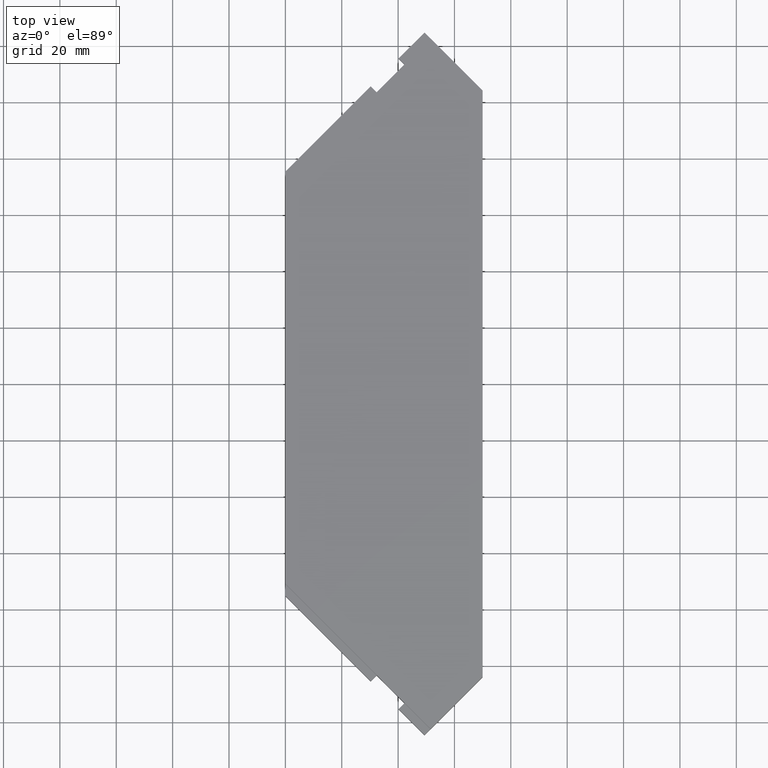
[diagram: clean part render]
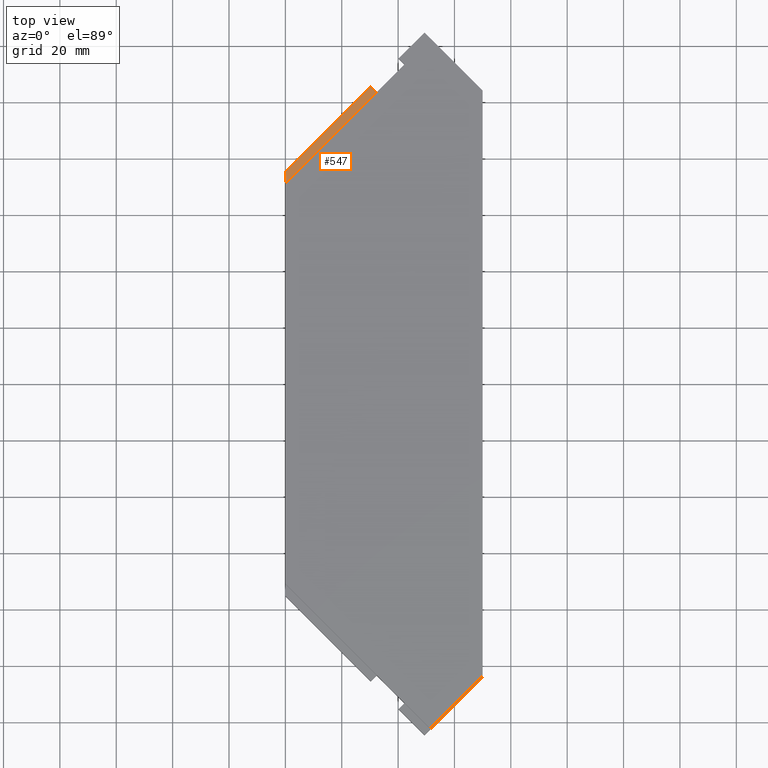
[diagram: same view with one face highlighted and labeled with its STEP entity id]
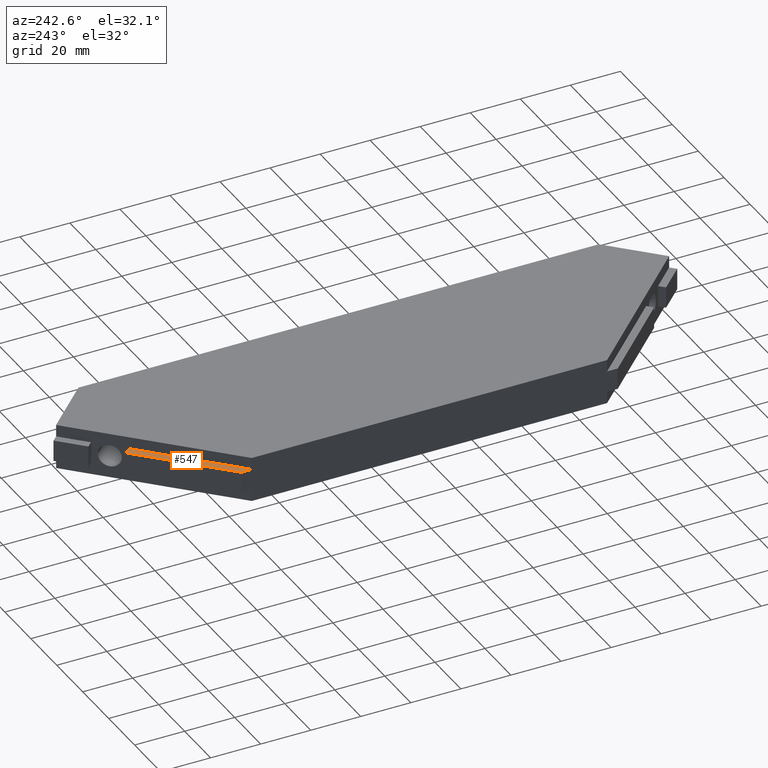
[diagram: same view with one face highlighted and labeled with its STEP entity id]
A machine part, top view. The second image highlights one B-rep face of the part: STEP entity #547.
A second angle (auxiliary view) of the same face is appended — the face is thin or edge-on in the first view.
In plain terms, the highlighted planar face has unit normal (0, 0, 1).
Its self-contained STEP definition (entity closure, byte-faithful):
#45=FACE_OUTER_BOUND('',#79,.T.);
#79=EDGE_LOOP('',(#421,#422,#423,#424));
#120=LINE('',#788,#186);
#142=LINE('',#833,#208);
#146=LINE('',#840,#212);
#148=LINE('',#844,#214);
#186=VECTOR('',#632,45.8319985921907);
#208=VECTOR('',#666,2.99999951412127);
#212=VECTOR('',#672,42.8319983709626);
#214=VECTOR('',#678,4.24264099998299);
#254=VERTEX_POINT('',#785);
#255=VERTEX_POINT('',#787);
#272=VERTEX_POINT('',#831);
#274=VERTEX_POINT('',#838);
#306=EDGE_CURVE('',#255,#254,#120,.T.);
#330=EDGE_CURVE('',#254,#272,#142,.T.);
#334=EDGE_CURVE('',#272,#274,#146,.T.);
#336=EDGE_CURVE('',#274,#255,#148,.T.);
#421=ORIENTED_EDGE('',*,*,#334,.T.);
#422=ORIENTED_EDGE('',*,*,#336,.T.);
#423=ORIENTED_EDGE('',*,*,#306,.T.);
#424=ORIENTED_EDGE('',*,*,#330,.T.);
#521=PLANE('',#583);
#547=ADVANCED_FACE('',(#45),#521,.T.);
#583=AXIS2_PLACEMENT_3D('',#843,#676,#677);
#632=DIRECTION('',(0.707106781186548,0.707106781186547,0.));
#666=DIRECTION('',(-0.707106781186555,0.70710678118654,0.));
#672=DIRECTION('',(-0.707106792860063,-0.707106769513032,0.));
#676=DIRECTION('center_axis',(0.,0.,1.));
#677=DIRECTION('ref_axis',(1.,0.,0.));
#678=DIRECTION('',(0.,-1.,0.));
#785=CARTESIAN_POINT('',(32.4081169998703,103.408116999586,13.25));
#787=CARTESIAN_POINT('',(-2.842171E-14,70.999999999716,13.25));
#788=CARTESIAN_POINT('',(-2.842171E-14,70.999999999716,13.25));
#831=CARTESIAN_POINT('',(30.2867969998788,105.529436999578,13.25));
#833=CARTESIAN_POINT('',(32.4081169998703,103.408116999586,13.25));
#838=CARTESIAN_POINT('',(-2.842171E-14,75.242640999699,13.25));
#840=CARTESIAN_POINT('',(30.2867969998788,105.529436999578,13.25));
#843=CARTESIAN_POINT('Origin',(-3.24081642468043,67.5470515751208,13.25));
#844=CARTESIAN_POINT('',(-2.842171E-14,75.242640999699,13.25));